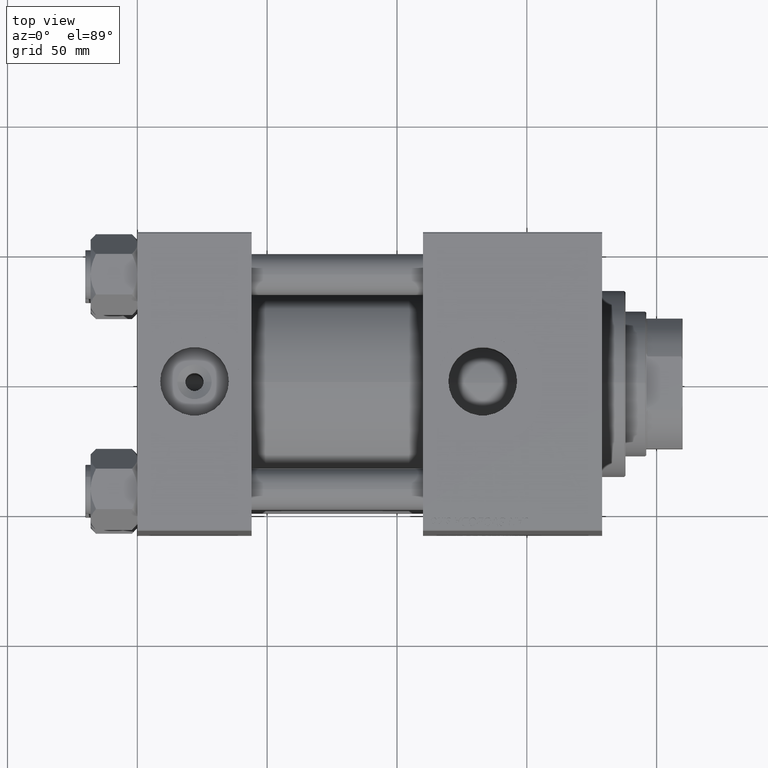
[diagram: clean part render]
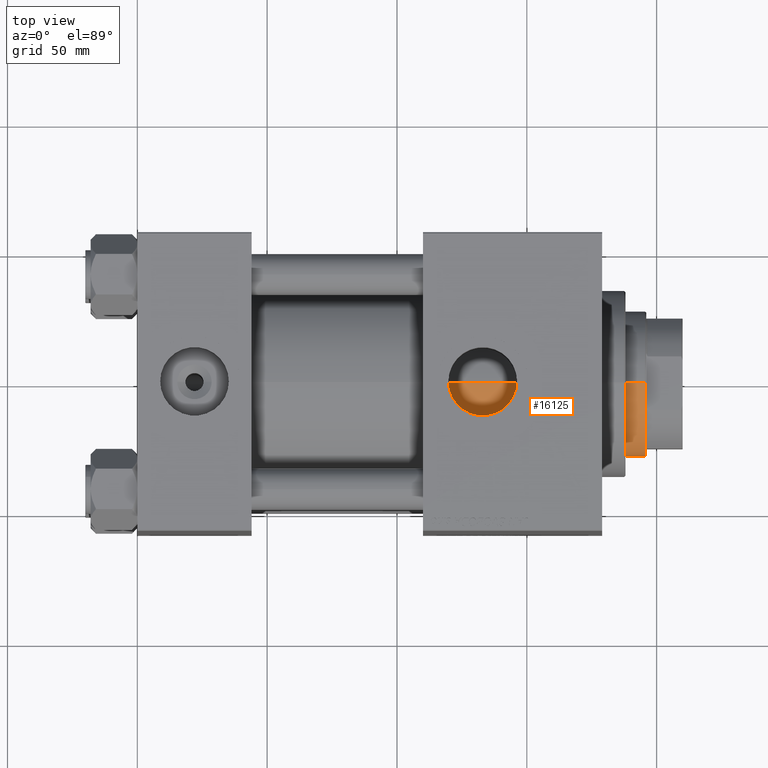
[diagram: same view with one face highlighted and labeled with its STEP entity id]
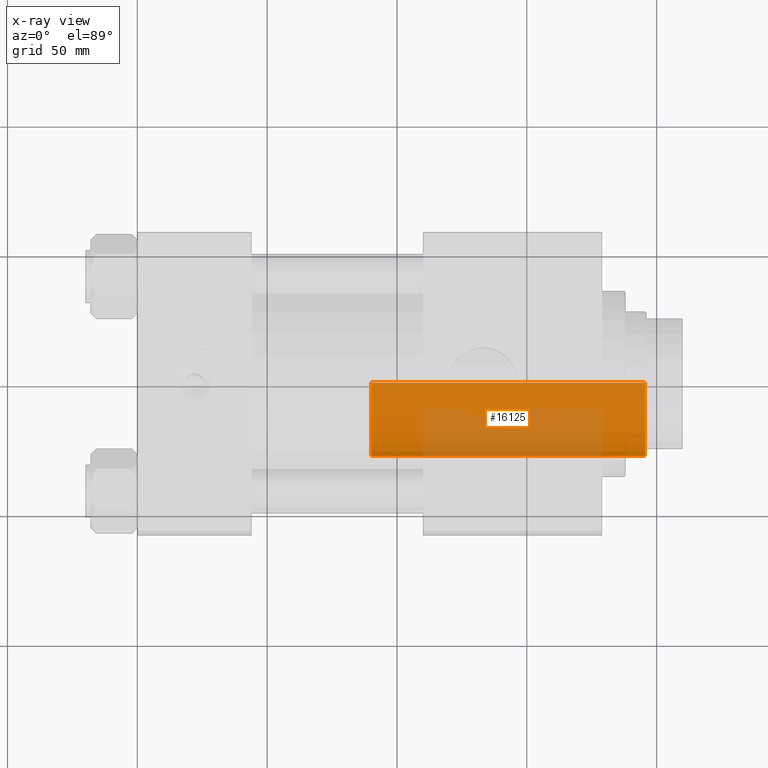
[diagram: x-ray of the same camera — body ghosted, the highlighted face saturated]
A machine part, top view. The second image highlights one B-rep face of the part: STEP entity #16125.
The next image is the same camera in x-ray: the body ghosted, the highlighted face saturated — about 41% of this face is hidden behind the body in this view.
In plain terms, the highlighted cylindrical surface (partial cylindrical patch) has radius 28 mm, axis along (-1, 0, 0).
Its self-contained STEP definition (entity closure, byte-faithful):
#2564 = DIRECTION ( 'NONE',  ( -1.000000000000000000, 0.000000000000000000, 0.000000000000000000 ) ) ;
#3040 = EDGE_CURVE ( 'NONE', #47064, #3173, #11364, .T. ) ;
#3173 = VERTEX_POINT ( 'NONE', #11022 ) ;
#3739 = ORIENTED_EDGE ( 'NONE', *, *, #28496, .T. ) ;
#4318 = ORIENTED_EDGE ( 'NONE', *, *, #14314, .F. ) ;
#7218 = VERTEX_POINT ( 'NONE', #13693 ) ;
#9533 = DIRECTION ( 'NONE',  ( 0.000000000000000000, 0.000000000000000000, -1.000000000000000000 ) ) ;
#11022 = CARTESIAN_POINT ( 'NONE',  ( 28.00000000000000000, 3.429011037612589276E-15, 151.4999999999999432 ) ) ;
#11364 = CIRCLE ( 'NONE', #35895, 28.00000000000000000 ) ;
#12284 = CARTESIAN_POINT ( 'NONE',  ( 28.00000000000000000, 3.429011037612589276E-15, 152.0000000000000000 ) ) ;
#12530 = DIRECTION ( 'NONE',  ( -0.000000000000000000, -0.000000000000000000, -1.000000000000000000 ) ) ;
#13693 = CARTESIAN_POINT ( 'NONE',  ( -28.00000000000000000, 0.000000000000000000, 46.00000000000000000 ) ) ;
#14301 = ORIENTED_EDGE ( 'NONE', *, *, #30103, .T. ) ;
#14314 = EDGE_CURVE ( 'NONE', #47064, #7218, #35450, .T. ) ;
#15076 = CIRCLE ( 'NONE', #21612, 28.00000000000000000 ) ;
#16125 = ADVANCED_FACE ( 'NONE', ( #26374 ), #45115, .T. ) ;
#17233 = CARTESIAN_POINT ( 'NONE',  ( 0.000000000000000000, 0.000000000000000000, 151.4999999999999432 ) ) ;
#18019 = VECTOR ( 'NONE', #50575, 1000.000000000000000 ) ;
#18787 = ORIENTED_EDGE ( 'NONE', *, *, #3040, .T. ) ;
#20861 = VECTOR ( 'NONE', #12530, 1000.000000000000000 ) ;
#21612 = AXIS2_PLACEMENT_3D ( 'NONE', #37222, #33871, #41072 ) ;
#26374 = FACE_OUTER_BOUND ( 'NONE', #46393, .T. ) ;
#27871 = CARTESIAN_POINT ( 'NONE',  ( 28.00000000000000000, 3.429011037612589276E-15, 46.00000000000000000 ) ) ;
#28496 = EDGE_CURVE ( 'NONE', #31252, #7218, #15076, .T. ) ;
#30103 = EDGE_CURVE ( 'NONE', #3173, #31252, #32012, .T. ) ;
#31252 = VERTEX_POINT ( 'NONE', #27871 ) ;
#32012 = LINE ( 'NONE', #12284, #20861 ) ;
#33806 = DIRECTION ( 'NONE',  ( -0.000000000000000000, -0.000000000000000000, -1.000000000000000000 ) ) ;
#33871 = DIRECTION ( 'NONE',  ( 0.000000000000000000, 0.000000000000000000, 1.000000000000000000 ) ) ;
#34561 = CARTESIAN_POINT ( 'NONE',  ( 0.000000000000000000, 0.000000000000000000, 152.0000000000000000 ) ) ;
#35450 = LINE ( 'NONE', #43399, #18019 ) ;
#35518 = CARTESIAN_POINT ( 'NONE',  ( -28.00000000000000000, 0.000000000000000000, 151.4999999999999432 ) ) ;
#35895 = AXIS2_PLACEMENT_3D ( 'NONE', #17233, #9533, #44628 ) ;
#36063 = AXIS2_PLACEMENT_3D ( 'NONE', #34561, #33806, #2564 ) ;
#37222 = CARTESIAN_POINT ( 'NONE',  ( 0.000000000000000000, 0.000000000000000000, 46.00000000000000000 ) ) ;
#41072 = DIRECTION ( 'NONE',  ( 1.000000000000000000, 0.000000000000000000, 0.000000000000000000 ) ) ;
#43399 = CARTESIAN_POINT ( 'NONE',  ( -28.00000000000000000, 0.000000000000000000, 152.0000000000000000 ) ) ;
#44628 = DIRECTION ( 'NONE',  ( 1.000000000000000000, 0.000000000000000000, 0.000000000000000000 ) ) ;
#45115 = CYLINDRICAL_SURFACE ( 'NONE', #36063, 28.00000000000000000 ) ;
#46393 = EDGE_LOOP ( 'NONE', ( #18787, #14301, #3739, #4318 ) ) ;
#47064 = VERTEX_POINT ( 'NONE', #35518 ) ;
#50575 = DIRECTION ( 'NONE',  ( -0.000000000000000000, -0.000000000000000000, -1.000000000000000000 ) ) ;